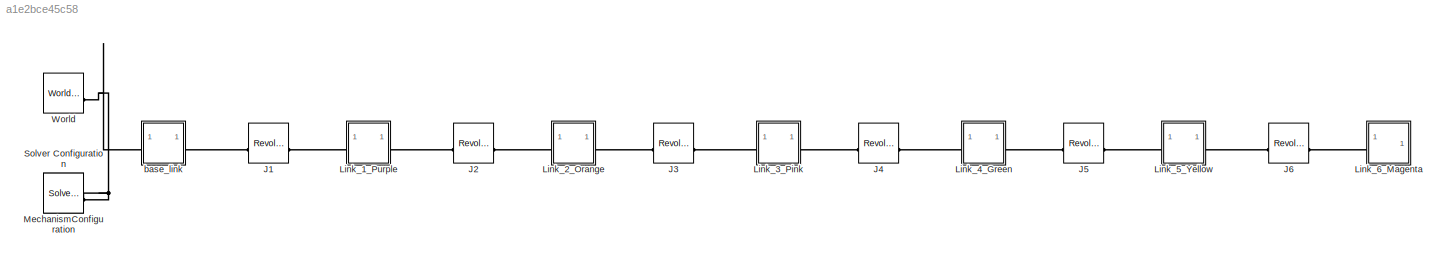
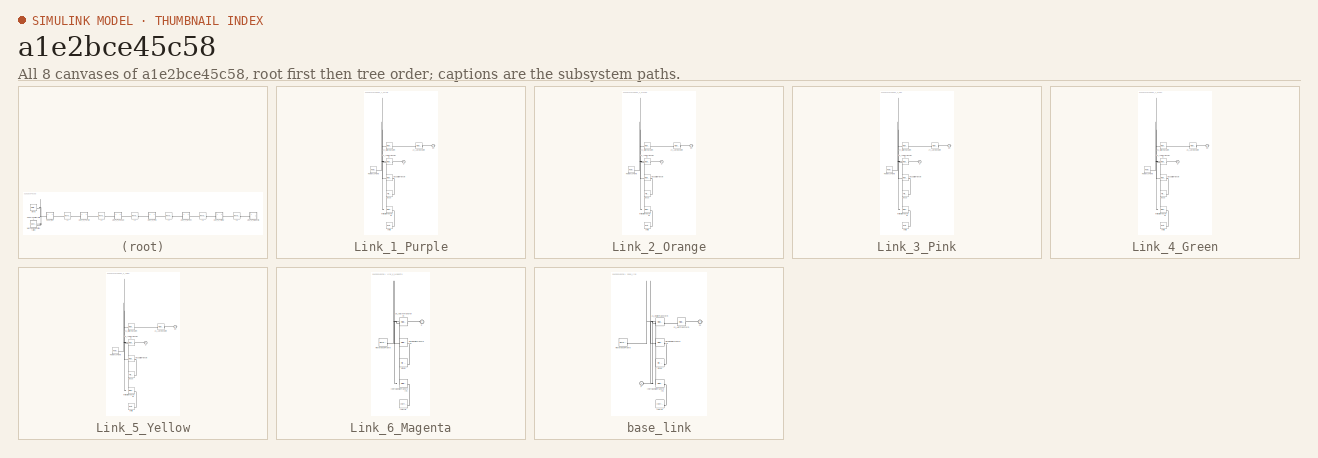
[diagram: thumbnail index - all 8 canvases of the model, root first then tree order]
MODEL slx_a1e2bce45c58
KIND model
CONFIG AbsTol = auto
CONFIG EnableMultiTasking = off
CONFIG FixedStep = auto
CONFIG MaxStep = auto
CONFIG MinStep = auto
CONFIG RelTol = 1e-3
CONFIG SampleTimeConstraint = Unconstrained
CONFIG SolverName = VariableStepAuto
CONFIG StartTime = 0.0
CONFIG StopTime = 10.0
BLOCK [Reference] J1  REF=sm_lib/Joints/Revolute Joint
  SourceBlock = sm_lib/Joints/Revolute Joint
  SourceType = Revolute Joint
BLOCK [Reference] J2  REF=sm_lib/Joints/Revolute Joint
  SourceBlock = sm_lib/Joints/Revolute Joint
  SourceType = Revolute Joint
BLOCK [Reference] J3  REF=sm_lib/Joints/Revolute Joint
  SourceBlock = sm_lib/Joints/Revolute Joint
  SourceType = Revolute Joint
BLOCK [Reference] J4  REF=sm_lib/Joints/Revolute Joint
  SourceBlock = sm_lib/Joints/Revolute Joint
  SourceType = Revolute Joint
BLOCK [Reference] J5  REF=sm_lib/Joints/Revolute Joint
  SourceBlock = sm_lib/Joints/Revolute Joint
  SourceType = Revolute Joint
BLOCK [Reference] J6  REF=sm_lib/Joints/Revolute Joint
  SourceBlock = sm_lib/Joints/Revolute Joint
  SourceType = Revolute Joint
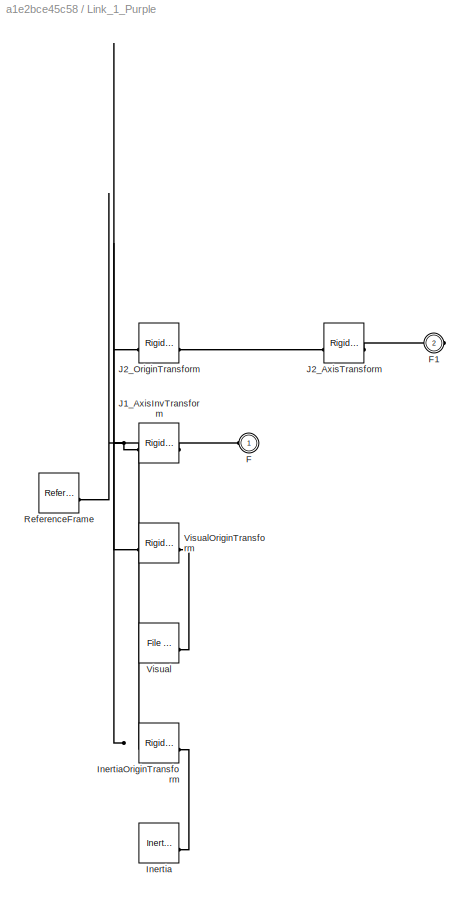
BLOCK [SubSystem] Link_1_Purple
BLOCK [PMIOPort] Link_1_Purple/F
  Side = Left
BLOCK [PMIOPort] Link_1_Purple/F1
  Port = 2
  Side = Right
BLOCK [Reference] Link_1_Purple/Inertia  REF=sm_lib/Body Elements/Inertia
  SourceBlock = sm_lib/Body Elements/Inertia
  SourceType = Inertia
BLOCK [Reference] Link_1_Purple/InertiaOriginTransform  REF=sm_lib/Frames and
Transforms/Rigid
Transform
  SourceBlock = sm_lib/Frames and\nTransforms/Rigid\nTransform
  SourceType = Rigid\nTransform
BLOCK [Reference] Link_1_Purple/J1_AxisInvTransform  REF=sm_lib/Frames and
Transforms/Rigid
Transform
  SourceBlock = sm_lib/Frames and\nTransforms/Rigid\nTransform
  SourceType = Rigid\nTransform
BLOCK [Reference] Link_1_Purple/J2_AxisTransform  REF=sm_lib/Frames and
Transforms/Rigid
Transform
  SourceBlock = sm_lib/Frames and\nTransforms/Rigid\nTransform
  SourceType = Rigid\nTransform
BLOCK [Reference] Link_1_Purple/J2_OriginTransform  REF=sm_lib/Frames and
Transforms/Rigid
Transform
  SourceBlock = sm_lib/Frames and\nTransforms/Rigid\nTransform
  SourceType = Rigid\nTransform
BLOCK [Reference] Link_1_Purple/ReferenceFrame  REF=sm_lib/Frames and
Transforms/Reference
Frame
  SourceBlock = sm_lib/Frames and\nTransforms/Reference\nFrame
  SourceType = Reference\nFrame
BLOCK [Reference] Link_1_Purple/Visual  REF=sm_lib/Body Elements/File Solid
  SourceBlock = sm_lib/Body Elements/File Solid
  SourceType = File Solid
BLOCK [Reference] Link_1_Purple/VisualOriginTransform  REF=sm_lib/Frames and
Transforms/Rigid
Transform
  SourceBlock = sm_lib/Frames and\nTransforms/Rigid\nTransform
  SourceType = Rigid\nTransform
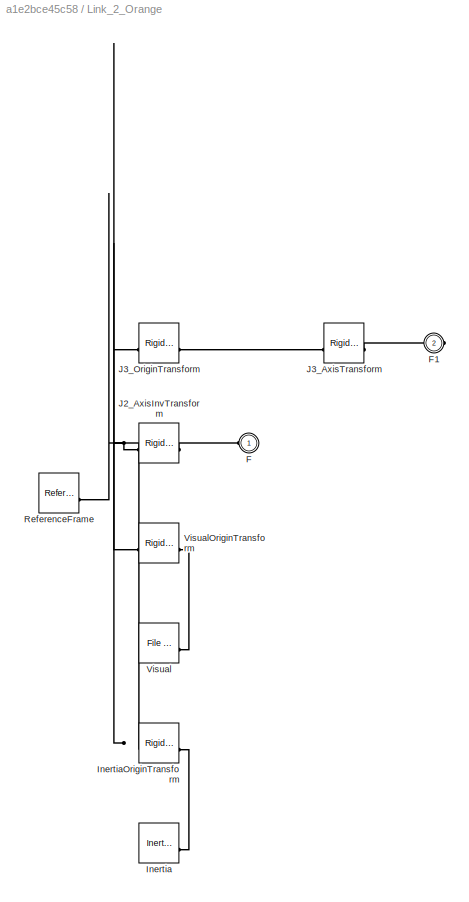
BLOCK [SubSystem] Link_2_Orange
BLOCK [PMIOPort] Link_2_Orange/F
  Side = Left
BLOCK [PMIOPort] Link_2_Orange/F1
  Port = 2
  Side = Right
BLOCK [Reference] Link_2_Orange/Inertia  REF=sm_lib/Body Elements/Inertia
  SourceBlock = sm_lib/Body Elements/Inertia
  SourceType = Inertia
BLOCK [Reference] Link_2_Orange/InertiaOriginTransform  REF=sm_lib/Frames and
Transforms/Rigid
Transform
  SourceBlock = sm_lib/Frames and\nTransforms/Rigid\nTransform
  SourceType = Rigid\nTransform
BLOCK [Reference] Link_2_Orange/J2_AxisInvTransform  REF=sm_lib/Frames and
Transforms/Rigid
Transform
  SourceBlock = sm_lib/Frames and\nTransforms/Rigid\nTransform
  SourceType = Rigid\nTransform
BLOCK [Reference] Link_2_Orange/J3_AxisTransform  REF=sm_lib/Frames and
Transforms/Rigid
Transform
  SourceBlock = sm_lib/Frames and\nTransforms/Rigid\nTransform
  SourceType = Rigid\nTransform
BLOCK [Reference] Link_2_Orange/J3_OriginTransform  REF=sm_lib/Frames and
Transforms/Rigid
Transform
  SourceBlock = sm_lib/Frames and\nTransforms/Rigid\nTransform
  SourceType = Rigid\nTransform
BLOCK [Reference] Link_2_Orange/ReferenceFrame  REF=sm_lib/Frames and
Transforms/Reference
Frame
  SourceBlock = sm_lib/Frames and\nTransforms/Reference\nFrame
  SourceType = Reference\nFrame
BLOCK [Reference] Link_2_Orange/Visual  REF=sm_lib/Body Elements/File Solid
  SourceBlock = sm_lib/Body Elements/File Solid
  SourceType = File Solid
BLOCK [Reference] Link_2_Orange/VisualOriginTransform  REF=sm_lib/Frames and
Transforms/Rigid
Transform
  SourceBlock = sm_lib/Frames and\nTransforms/Rigid\nTransform
  SourceType = Rigid\nTransform
BLOCK [SubSystem] Link_3_Pink
BLOCK [PMIOPort] Link_3_Pink/F
  Side = Left
BLOCK [PMIOPort] Link_3_Pink/F1
  Port = 2
  Side = Right
BLOCK [Reference] Link_3_Pink/Inertia  REF=sm_lib/Body Elements/Inertia
  SourceBlock = sm_lib/Body Elements/Inertia
  SourceType = Inertia
BLOCK [Reference] Link_3_Pink/InertiaOriginTransform  REF=sm_lib/Frames and
Transforms/Rigid
Transform
  SourceBlock = sm_lib/Frames and\nTransforms/Rigid\nTransform
  SourceType = Rigid\nTransform
BLOCK [Reference] Link_3_Pink/J3_AxisInvTransform  REF=sm_lib/Frames and
Transforms/Rigid
Transform
  SourceBlock = sm_lib/Frames and\nTransforms/Rigid\nTransform
  SourceType = Rigid\nTransform
BLOCK [Reference] Link_3_Pink/J4_AxisTransform  REF=sm_lib/Frames and
Transforms/Rigid
Transform
  SourceBlock = sm_lib/Frames and\nTransforms/Rigid\nTransform
  SourceType = Rigid\nTransform
BLOCK [Reference] Link_3_Pink/J4_OriginTransform  REF=sm_lib/Frames and
Transforms/Rigid
Transform
  SourceBlock = sm_lib/Frames and\nTransforms/Rigid\nTransform
  SourceType = Rigid\nTransform
BLOCK [Reference] Link_3_Pink/ReferenceFrame  REF=sm_lib/Frames and
Transforms/Reference
Frame
  SourceBlock = sm_lib/Frames and\nTransforms/Reference\nFrame
  SourceType = Reference\nFrame
BLOCK [Reference] Link_3_Pink/Visual  REF=sm_lib/Body Elements/File Solid
  SourceBlock = sm_lib/Body Elements/File Solid
  SourceType = File Solid
BLOCK [Reference] Link_3_Pink/VisualOriginTransform  REF=sm_lib/Frames and
Transforms/Rigid
Transform
  SourceBlock = sm_lib/Frames and\nTransforms/Rigid\nTransform
  SourceType = Rigid\nTransform
BLOCK [SubSystem] Link_4_Green
BLOCK [PMIOPort] Link_4_Green/F
  Side = Left
BLOCK [PMIOPort] Link_4_Green/F1
  Port = 2
  Side = Right
BLOCK [Reference] Link_4_Green/Inertia  REF=sm_lib/Body Elements/Inertia
  SourceBlock = sm_lib/Body Elements/Inertia
  SourceType = Inertia
BLOCK [Reference] Link_4_Green/InertiaOriginTransform  REF=sm_lib/Frames and
Transforms/Rigid
Transform
  SourceBlock = sm_lib/Frames and\nTransforms/Rigid\nTransform
  SourceType = Rigid\nTransform
BLOCK [Reference] Link_4_Green/J4_AxisInvTransform  REF=sm_lib/Frames and
Transforms/Rigid
Transform
  SourceBlock = sm_lib/Frames and\nTransforms/Rigid\nTransform
  SourceType = Rigid\nTransform
BLOCK [Reference] Link_4_Green/J5_AxisTransform  REF=sm_lib/Frames and
Transforms/Rigid
Transform
  SourceBlock = sm_lib/Frames and\nTransforms/Rigid\nTransform
  SourceType = Rigid\nTransform
BLOCK [Reference] Link_4_Green/J5_OriginTransform  REF=sm_lib/Frames and
Transforms/Rigid
Transform
  SourceBlock = sm_lib/Frames and\nTransforms/Rigid\nTransform
  SourceType = Rigid\nTransform
BLOCK [Reference] Link_4_Green/ReferenceFrame  REF=sm_lib/Frames and
Transforms/Reference
Frame
  SourceBlock = sm_lib/Frames and\nTransforms/Reference\nFrame
  SourceType = Reference\nFrame
BLOCK [Reference] Link_4_Green/Visual  REF=sm_lib/Body Elements/File Solid
  SourceBlock = sm_lib/Body Elements/File Solid
  SourceType = File Solid
BLOCK [Reference] Link_4_Green/VisualOriginTransform  REF=sm_lib/Frames and
Transforms/Rigid
Transform
  SourceBlock = sm_lib/Frames and\nTransforms/Rigid\nTransform
  SourceType = Rigid\nTransform
BLOCK [SubSystem] Link_5_Yellow
BLOCK [PMIOPort] Link_5_Yellow/F
  Side = Left
BLOCK [PMIOPort] Link_5_Yellow/F1
  Port = 2
  Side = Right
BLOCK [Reference] Link_5_Yellow/Inertia  REF=sm_lib/Body Elements/Inertia
  SourceBlock = sm_lib/Body Elements/Inertia
  SourceType = Inertia
BLOCK [Reference] Link_5_Yellow/InertiaOriginTransform  REF=sm_lib/Frames and
Transforms/Rigid
Transform
  SourceBlock = sm_lib/Frames and\nTransforms/Rigid\nTransform
  SourceType = Rigid\nTransform
BLOCK [Reference] Link_5_Yellow/J5_AxisInvTransform  REF=sm_lib/Frames and
Transforms/Rigid
Transform
  SourceBlock = sm_lib/Frames and\nTransforms/Rigid\nTransform
  SourceType = Rigid\nTransform
BLOCK [Reference] Link_5_Yellow/J6_AxisTransform  REF=sm_lib/Frames and
Transforms/Rigid
Transform
  SourceBlock = sm_lib/Frames and\nTransforms/Rigid\nTransform
  SourceType = Rigid\nTransform
BLOCK [Reference] Link_5_Yellow/J6_OriginTransform  REF=sm_lib/Frames and
Transforms/Rigid
Transform
  SourceBlock = sm_lib/Frames and\nTransforms/Rigid\nTransform
  SourceType = Rigid\nTransform
BLOCK [Reference] Link_5_Yellow/ReferenceFrame  REF=sm_lib/Frames and
Transforms/Reference
Frame
  SourceBlock = sm_lib/Frames and\nTransforms/Reference\nFrame
  SourceType = Reference\nFrame
BLOCK [Reference] Link_5_Yellow/Visual  REF=sm_lib/Body Elements/File Solid
  SourceBlock = sm_lib/Body Elements/File Solid
  SourceType = File Solid
BLOCK [Reference] Link_5_Yellow/VisualOriginTransform  REF=sm_lib/Frames and
Transforms/Rigid
Transform
  SourceBlock = sm_lib/Frames and\nTransforms/Rigid\nTransform
  SourceType = Rigid\nTransform
BLOCK [SubSystem] Link_6_Magenta
BLOCK [PMIOPort] Link_6_Magenta/F
  Side = Left
BLOCK [Reference] Link_6_Magenta/Inertia  REF=sm_lib/Body Elements/Inertia
  SourceBlock = sm_lib/Body Elements/Inertia
  SourceType = Inertia
BLOCK [Reference] Link_6_Magenta/InertiaOriginTransform  REF=sm_lib/Frames and
Transforms/Rigid
Transform
  SourceBlock = sm_lib/Frames and\nTransforms/Rigid\nTransform
  SourceType = Rigid\nTransform
BLOCK [Reference] Link_6_Magenta/J6_AxisInvTransform  REF=sm_lib/Frames and
Transforms/Rigid
Transform
  SourceBlock = sm_lib/Frames and\nTransforms/Rigid\nTransform
  SourceType = Rigid\nTransform
BLOCK [Reference] Link_6_Magenta/ReferenceFrame  REF=sm_lib/Frames and
Transforms/Reference
Frame
  SourceBlock = sm_lib/Frames and\nTransforms/Reference\nFrame
  SourceType = Reference\nFrame
BLOCK [Reference] Link_6_Magenta/Visual  REF=sm_lib/Body Elements/File Solid
  SourceBlock = sm_lib/Body Elements/File Solid
  SourceType = File Solid
BLOCK [Reference] Link_6_Magenta/VisualOriginTransform  REF=sm_lib/Frames and
Transforms/Rigid
Transform
  SourceBlock = sm_lib/Frames and\nTransforms/Rigid\nTransform
  SourceType = Rigid\nTransform
BLOCK [Reference] MechanismConfiguration  REF=sm_lib/Utilities/Mechanism
Configuration
  SourceBlock = sm_lib/Utilities/Mechanism\nConfiguration
  SourceType = Mechanism\nConfiguration
BLOCK [Reference] Solver Configuration  REF=nesl_utility/Solver
Configuration
  SourceBlock = nesl_utility/Solver\nConfiguration
  SourceType = Solver\nConfiguration
BLOCK [Reference] World  REF=sm_lib/Frames and
Transforms/World Frame
  SourceBlock = sm_lib/Frames and\nTransforms/World Frame
  SourceType = World Frame
BLOCK [SubSystem] base_link
BLOCK [PMIOPort] base_link/F
  Side = Left
BLOCK [PMIOPort] base_link/F1
  Port = 2
  Side = Right
BLOCK [Reference] base_link/Inertia  REF=sm_lib/Body Elements/Inertia
  SourceBlock = sm_lib/Body Elements/Inertia
  SourceType = Inertia
BLOCK [Reference] base_link/InertiaOriginTransform  REF=sm_lib/Frames and
Transforms/Rigid
Transform
  SourceBlock = sm_lib/Frames and\nTransforms/Rigid\nTransform
  SourceType = Rigid\nTransform
BLOCK [Reference] base_link/J1_AxisTransform  REF=sm_lib/Frames and
Transforms/Rigid
Transform
  SourceBlock = sm_lib/Frames and\nTransforms/Rigid\nTransform
  SourceType = Rigid\nTransform
BLOCK [Reference] base_link/J1_OriginTransform  REF=sm_lib/Frames and
Transforms/Rigid
Transform
  SourceBlock = sm_lib/Frames and\nTransforms/Rigid\nTransform
  SourceType = Rigid\nTransform
BLOCK [Reference] base_link/ReferenceFrame  REF=sm_lib/Frames and
Transforms/Reference
Frame
  SourceBlock = sm_lib/Frames and\nTransforms/Reference\nFrame
  SourceType = Reference\nFrame
BLOCK [Reference] base_link/Visual  REF=sm_lib/Body Elements/File Solid
  SourceBlock = sm_lib/Body Elements/File Solid
  SourceType = File Solid
BLOCK [Reference] base_link/VisualOriginTransform  REF=sm_lib/Frames and
Transforms/Rigid
Transform
  SourceBlock = sm_lib/Frames and\nTransforms/Rigid\nTransform
  SourceType = Rigid\nTransform
PLINE J1:LConn1 -- base_link:RConn1
PLINE J1:RConn1 -- Link_1_Purple:LConn1
PLINE J2:LConn1 -- Link_1_Purple:RConn1
PLINE J2:RConn1 -- Link_2_Orange:LConn1
PLINE J3:LConn1 -- Link_2_Orange:RConn1
PLINE J3:RConn1 -- Link_3_Pink:LConn1
PLINE J4:LConn1 -- Link_3_Pink:RConn1
PLINE J4:RConn1 -- Link_4_Green:LConn1
PLINE J5:LConn1 -- Link_4_Green:RConn1
PLINE J5:RConn1 -- Link_5_Yellow:LConn1
PLINE J6:LConn1 -- Link_5_Yellow:RConn1
PLINE J6:RConn1 -- Link_6_Magenta:LConn1
PLINE Link_1_Purple/F1:RConn1 -- Link_1_Purple/J2_AxisTransform:RConn1
PLINE Link_1_Purple/F:RConn1 -- Link_1_Purple/J1_AxisInvTransform:RConn1
PLINE Link_1_Purple/Inertia:RConn1 -- Link_1_Purple/InertiaOriginTransform:RConn1
PNET net1: Link_1_Purple/InertiaOriginTransform:LConn1 -- Link_1_Purple/J1_AxisInvTransform:LConn1 -- Link_1_Purple/J2_OriginTransform:LConn1 -- Link_1_Purple/ReferenceFrame:RConn1 -- Link_1_Purple/VisualOriginTransform:LConn1
PLINE Link_1_Purple/J2_AxisTransform:LConn1 -- Link_1_Purple/J2_OriginTransform:RConn1
PLINE Link_1_Purple/Visual:RConn1 -- Link_1_Purple/VisualOriginTransform:RConn1
PLINE Link_2_Orange/F1:RConn1 -- Link_2_Orange/J3_AxisTransform:RConn1
PLINE Link_2_Orange/F:RConn1 -- Link_2_Orange/J2_AxisInvTransform:RConn1
PLINE Link_2_Orange/Inertia:RConn1 -- Link_2_Orange/InertiaOriginTransform:RConn1
PNET net2: Link_2_Orange/InertiaOriginTransform:LConn1 -- Link_2_Orange/J2_AxisInvTransform:LConn1 -- Link_2_Orange/J3_OriginTransform:LConn1 -- Link_2_Orange/ReferenceFrame:RConn1 -- Link_2_Orange/VisualOriginTransform:LConn1
PLINE Link_2_Orange/J3_AxisTransform:LConn1 -- Link_2_Orange/J3_OriginTransform:RConn1
PLINE Link_2_Orange/Visual:RConn1 -- Link_2_Orange/VisualOriginTransform:RConn1
PLINE Link_3_Pink/F1:RConn1 -- Link_3_Pink/J4_AxisTransform:RConn1
PLINE Link_3_Pink/F:RConn1 -- Link_3_Pink/J3_AxisInvTransform:RConn1
PLINE Link_3_Pink/Inertia:RConn1 -- Link_3_Pink/InertiaOriginTransform:RConn1
PNET net3: Link_3_Pink/InertiaOriginTransform:LConn1 -- Link_3_Pink/J3_AxisInvTransform:LConn1 -- Link_3_Pink/J4_OriginTransform:LConn1 -- Link_3_Pink/ReferenceFrame:RConn1 -- Link_3_Pink/VisualOriginTransform:LConn1
PLINE Link_3_Pink/J4_AxisTransform:LConn1 -- Link_3_Pink/J4_OriginTransform:RConn1
PLINE Link_3_Pink/Visual:RConn1 -- Link_3_Pink/VisualOriginTransform:RConn1
PLINE Link_4_Green/F1:RConn1 -- Link_4_Green/J5_AxisTransform:RConn1
PLINE Link_4_Green/F:RConn1 -- Link_4_Green/J4_AxisInvTransform:RConn1
PLINE Link_4_Green/Inertia:RConn1 -- Link_4_Green/InertiaOriginTransform:RConn1
PNET net4: Link_4_Green/InertiaOriginTransform:LConn1 -- Link_4_Green/J4_AxisInvTransform:LConn1 -- Link_4_Green/J5_OriginTransform:LConn1 -- Link_4_Green/ReferenceFrame:RConn1 -- Link_4_Green/VisualOriginTransform:LConn1
PLINE Link_4_Green/J5_AxisTransform:LConn1 -- Link_4_Green/J5_OriginTransform:RConn1
PLINE Link_4_Green/Visual:RConn1 -- Link_4_Green/VisualOriginTransform:RConn1
PLINE Link_5_Yellow/F1:RConn1 -- Link_5_Yellow/J6_AxisTransform:RConn1
PLINE Link_5_Yellow/F:RConn1 -- Link_5_Yellow/J5_AxisInvTransform:RConn1
PLINE Link_5_Yellow/Inertia:RConn1 -- Link_5_Yellow/InertiaOriginTransform:RConn1
PNET net5: Link_5_Yellow/InertiaOriginTransform:LConn1 -- Link_5_Yellow/J5_AxisInvTransform:LConn1 -- Link_5_Yellow/J6_OriginTransform:LConn1 -- Link_5_Yellow/ReferenceFrame:RConn1 -- Link_5_Yellow/VisualOriginTransform:LConn1
PLINE Link_5_Yellow/J6_AxisTransform:LConn1 -- Link_5_Yellow/J6_OriginTransform:RConn1
PLINE Link_5_Yellow/Visual:RConn1 -- Link_5_Yellow/VisualOriginTransform:RConn1
PLINE Link_6_Magenta/F:RConn1 -- Link_6_Magenta/J6_AxisInvTransform:RConn1
PLINE Link_6_Magenta/Inertia:RConn1 -- Link_6_Magenta/InertiaOriginTransform:RConn1
PNET net6: Link_6_Magenta/InertiaOriginTransform:LConn1 -- Link_6_Magenta/J6_AxisInvTransform:LConn1 -- Link_6_Magenta/ReferenceFrame:RConn1 -- Link_6_Magenta/VisualOriginTransform:LConn1
PLINE Link_6_Magenta/Visual:RConn1 -- Link_6_Magenta/VisualOriginTransform:RConn1
PNET net7: MechanismConfiguration:RConn1 -- Solver Configuration:RConn1 -- World:RConn1 -- base_link:LConn1
PLINE base_link/F1:RConn1 -- base_link/J1_AxisTransform:RConn1
PNET net8: base_link/F:RConn1 -- base_link/InertiaOriginTransform:LConn1 -- base_link/J1_OriginTransform:LConn1 -- base_link/ReferenceFrame:RConn1 -- base_link/VisualOriginTransform:LConn1
PLINE base_link/Inertia:RConn1 -- base_link/InertiaOriginTransform:RConn1
PLINE base_link/J1_AxisTransform:LConn1 -- base_link/J1_OriginTransform:RConn1
PLINE base_link/Visual:RConn1 -- base_link/VisualOriginTransform:RConn1
note: PNET lines group multi-terminal physical nets as a canonical sorted terminal list (undirected conserving connections); 2-terminal nets keep the pairwise PLINE form
